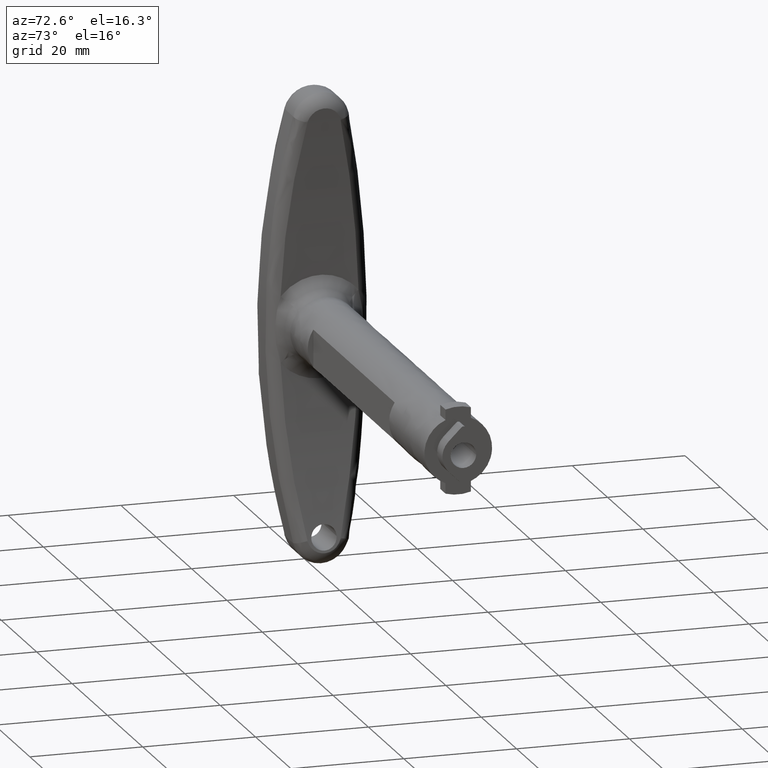
[diagram: clean part render]
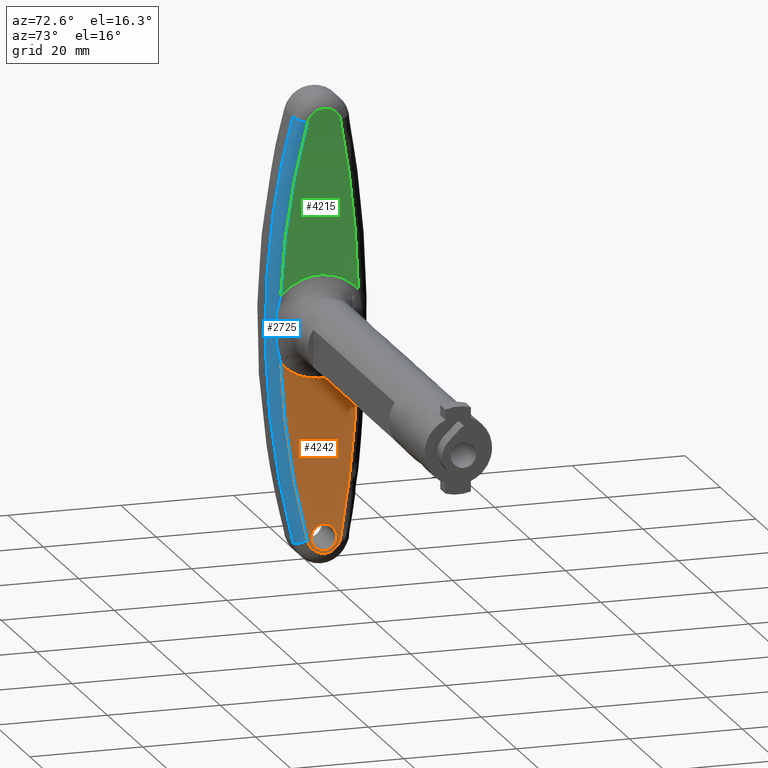
[diagram: same view with three faces highlighted in distinct colors, each labeled with its STEP entity id]
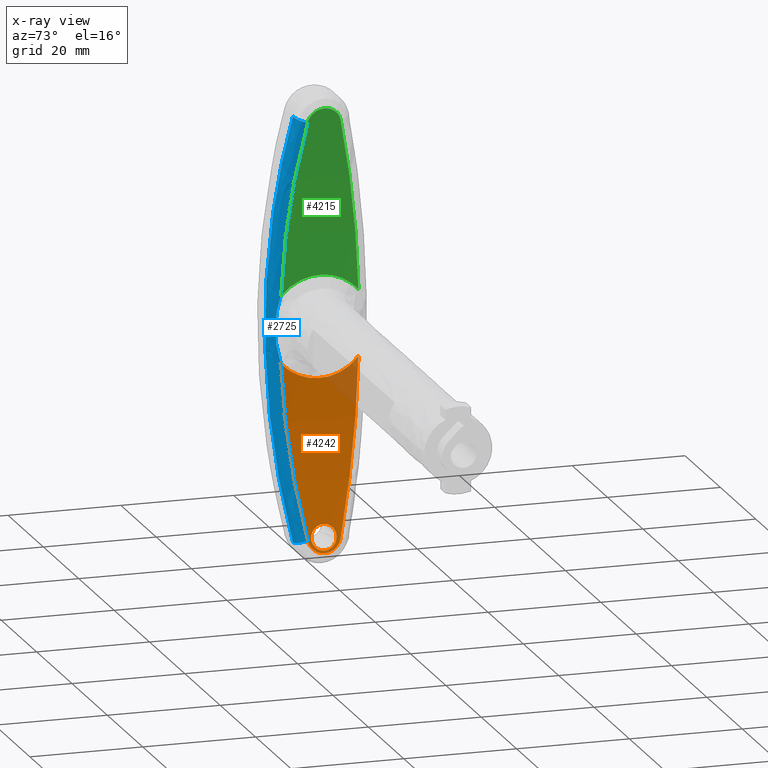
[diagram: x-ray of the same camera — body ghosted, the three highlighted faces saturated]
A machine part, auxiliary view with three faces highlighted in distinct colors.
The next image is the same camera in x-ray (body ghosted, the three faces saturated) — at least one of them is partly hidden behind the body in this view.
Their STEP definitions:

[orange] entity #4242 — the highlighted face is a freeform B-spline surface patch.
#318=CARTESIAN_POINT('',(11.084798414963300,-2.243075663508023,-36.676537470407439));
#319=VERTEX_POINT('',#318);
#325=CARTESIAN_POINT('',(11.386992760927299,0.000866583628422,-38.749999833118402));
#326=VERTEX_POINT('',#325);
#327=CARTESIAN_POINT('',(11.386992760927299,0.000866583628422,-38.749999833118402));
#328=CARTESIAN_POINT('',(11.387001273299781,-0.146720980639663,-38.750056644096652));
#329=CARTESIAN_POINT('',(11.384853712642251,-0.293363317285608,-38.735732470232158));
#330=CARTESIAN_POINT('',(11.378346874163720,-0.511881630680255,-38.692256972330718));
#331=CARTESIAN_POINT('',(11.375616815010551,-0.584515667820401,-38.674008030873907));
#332=CARTESIAN_POINT('',(11.369177115467940,-0.726051518924626,-38.630919340850447));
#333=CARTESIAN_POINT('',(11.361737330655931,-0.864695526182680,-38.581102887106439));
#334=CARTESIAN_POINT('',(11.352345051756281,-0.997660009661428,-38.518071502561561));
#335=CARTESIAN_POINT('',(11.344566124771969,-1.095230484405370,-38.465787890503982));
#336=CARTESIAN_POINT('',(11.341850487028619,-1.127394522350563,-38.447523519184323));
#337=CARTESIAN_POINT('',(11.336170851230291,-1.190991814089323,-38.409293984529292));
#338=CARTESIAN_POINT('',(11.333200619873130,-1.222480134664379,-38.389286722438179));
#339=CARTESIAN_POINT('',(11.317886825480150,-1.376412629535399,-38.286045712304173));
#340=CARTESIAN_POINT('',(11.304070327569191,-1.489636231561522,-38.192630214149467));
#341=CARTESIAN_POINT('',(11.281123947434960,-1.645051721480854,-38.036770804964512));
#342=CARTESIAN_POINT('',(11.273102148531621,-1.694436068320957,-37.982175885648012));
#343=CARTESIAN_POINT('',(11.256300901313290,-1.788226973075598,-37.867552519664997));
#344=CARTESIAN_POINT('',(11.247590756900250,-1.832211653203904,-37.807995464350618));
#345=CARTESIAN_POINT('',(11.220867728635310,-1.954176441687904,-37.624804793701429));
#346=CARTESIAN_POINT('',(11.202148770418519,-2.022935399585217,-37.495879967388923));
#347=CARTESIAN_POINT('',(11.172755053346499,-2.107176121462134,-37.292250935752953));
#348=CARTESIAN_POINT('',(11.162684231104370,-2.132171708684550,-37.222292026137197));
#349=CARTESIAN_POINT('',(11.142482760549729,-2.174779738293570,-37.081542944570067));
#350=CARTESIAN_POINT('',(11.132325885470809,-2.192507376707205,-37.010573171790298));
#351=CARTESIAN_POINT('',(11.109753542057630,-2.223978490848404,-36.852380561737078));
#352=CARTESIAN_POINT('',(11.097314334368180,-2.236130516425568,-36.764892675525559));
#353=CARTESIAN_POINT('',(11.084798414963300,-2.243075663508023,-36.676537470407439));
#354=B_SPLINE_CURVE_WITH_KNOTS('',3,(#327,#328,#329,#330,#331,#332,#333,#334,#335,#336,#337,#338,#339,#340,#341,#342,#343,#344,#345,#346,#347,#348,#349,#350,#351,#352,#353),.UNSPECIFIED.,.F.,.U.,(4,2,2,1,2,2,2,2,2,2,2,2,2,4),(0.500000000000014,0.531250000000015,0.546875000000015,0.562500000000015,0.578125000000016,0.585937500000016,0.593750000000016,0.625000000000014,0.640625000000013,0.656250000000013,0.687500000000011,0.703125000000010,0.718750000000008,0.737670210412609),.UNSPECIFIED.);
#355=EDGE_CURVE('',#326,#319,#354,.T.);
#357=CARTESIAN_POINT('',(11.053097017526740,2.249490740383622,-36.452040278163352));
#358=VERTEX_POINT('',#357);
#359=CARTESIAN_POINT('',(11.053097017526740,2.249490740383622,-36.452040278163352));
#360=CARTESIAN_POINT('',(11.055346655298640,2.249829194138224,-36.468021197279612));
#361=CARTESIAN_POINT('',(11.057599197404951,2.249998164871424,-36.484012030449527));
#362=CARTESIAN_POINT('',(11.070150898888739,2.249997698530624,-36.573056968207659));
#363=CARTESIAN_POINT('',(11.080507926292780,2.246449348237688,-36.646308730045561));
#364=CARTESIAN_POINT('',(11.101346553662671,2.232028472809970,-36.793240819240658));
#365=CARTESIAN_POINT('',(11.111724509603450,2.221204566932522,-36.866189004473497));
#366=CARTESIAN_POINT('',(11.142440548933200,2.178486459252173,-37.081461220788754));
#367=CARTESIAN_POINT('',(11.162490709794030,2.136359183248982,-37.221129058322461));
#368=CARTESIAN_POINT('',(11.191887984254359,2.052468914172007,-37.424800811737128));
#369=CARTESIAN_POINT('',(11.201622791849889,2.020827836336425,-37.492054212314898));
#370=CARTESIAN_POINT('',(11.220490406931100,1.951638449982248,-37.622062649802338));
#371=CARTESIAN_POINT('',(11.229646830422350,1.914067634419679,-37.684983468553632));
#372=CARTESIAN_POINT('',(11.256289571739361,1.792615015794090,-37.867629209103512));
#373=CARTESIAN_POINT('',(11.272958064096279,1.700079315814165,-37.981297714264912));
#374=CARTESIAN_POINT('',(11.296191819009341,1.543143344261583,-38.139118615083653));
#375=CARTESIAN_POINT('',(11.303545233933400,1.488397346627175,-38.188957053594827));
#376=CARTESIAN_POINT('',(11.317374189550289,1.374965088393050,-38.282519014096060));
#377=CARTESIAN_POINT('',(11.330362135675401,1.257343461951342,-38.370216352201460));
#378=CARTESIAN_POINT('',(11.341660606644711,1.131392888803138,-38.446256730270584));
#379=CARTESIAN_POINT('',(11.352086375939830,1.001180737495966,-38.516333947726530));
#380=CARTESIAN_POINT('',(11.356880486130560,0.933594216386047,-38.548508527308726));
#381=CARTESIAN_POINT('',(11.369625410601371,0.728472822054320,-38.633956846555932));
#382=CARTESIAN_POINT('',(11.376047283874700,0.587729150313999,-38.676891256993017));
#383=CARTESIAN_POINT('',(11.382571123933721,0.370685209900711,-38.720481412792161));
#384=CARTESIAN_POINT('',(11.384225497424390,0.297249023545490,-38.731527486115482));
#385=CARTESIAN_POINT('',(11.386441612793041,0.148692492087125,-38.746321995496061));
#386=CARTESIAN_POINT('',(11.386988508267660,0.074660544706572,-38.749971411298873));
#387=CARTESIAN_POINT('',(11.386992760927299,0.000866583628422,-38.749999833118402));
#388=B_SPLINE_CURVE_WITH_KNOTS('',3,(#359,#360,#361,#362,#363,#364,#365,#366,#367,#368,#369,#370,#371,#372,#373,#374,#375,#376,#377,#378,#379,#380,#381,#382,#383,#384,#385,#386,#387),.UNSPECIFIED.,.F.,.U.,(4,2,2,2,2,2,2,2,2,1,2,2,2,2,4),(0.246577261368025,0.250000000000000,0.265625000000001,0.281250000000001,0.312500000000004,0.328125000000005,0.343750000000006,0.375000000000009,0.390625000000010,0.406250000000010,0.421875000000011,0.437500000000012,0.468750000000013,0.484375000000013,0.500000000000014),.UNSPECIFIED.);
#389=EDGE_CURVE('',#358,#326,#388,.T.);
#460=CARTESIAN_POINT('',(10.752651893134679,-2.724058E-015,-34.250000000000000));
#461=VERTEX_POINT('',#460);
#462=CARTESIAN_POINT('',(10.752651893134679,-2.724058E-015,-34.250000000000000));
#463=CARTESIAN_POINT('',(10.752651905773520,0.149401341717648,-34.249999999601393));
#464=CARTESIAN_POINT('',(10.754597099652070,0.296267565468930,-34.264732723895563));
#465=CARTESIAN_POINT('',(10.760321625582289,0.512922960156445,-34.308006985909209));
#466=CARTESIAN_POINT('',(10.762701312426930,0.584529530226374,-34.325987473527967));
#467=CARTESIAN_POINT('',(10.768429709475820,0.726490930278788,-34.369221745927653));
#468=CARTESIAN_POINT('',(10.771791691543241,0.796968461204783,-34.394575151586707));
#469=CARTESIAN_POINT('',(10.783125580278901,1.001843445038046,-34.479925420632583));
#470=CARTESIAN_POINT('',(10.792386237662900,1.131325930795033,-34.549526454783113));
#471=CARTESIAN_POINT('',(10.806110557785299,1.284389346601527,-34.652244250556542));
#472=CARTESIAN_POINT('',(10.808963849122330,1.314558563728199,-34.673580750076340));
#473=CARTESIAN_POINT('',(10.814891841501140,1.373995978473176,-34.717864670850510));
#474=CARTESIAN_POINT('',(10.817975249569690,1.403338704578750,-34.740876940605879));
#475=CARTESIAN_POINT('',(10.827474169685610,1.489168554820130,-34.811693925176691));
#476=CARTESIAN_POINT('',(10.834149293850620,1.543614964874839,-34.861361007568760));
#477=CARTESIAN_POINT('',(10.855183861617631,1.698892711160581,-35.017498371991742));
#478=CARTESIAN_POINT('',(10.870542856230321,1.791738758447448,-35.131037336917970));
#479=CARTESIAN_POINT('',(10.891497047089549,1.894136304482271,-35.285046909592083));
#480=CARTESIAN_POINT('',(10.895781609949230,1.913942855197389,-35.316496239564607));
#481=CARTESIAN_POINT('',(10.904436273342730,1.951745584862965,-35.379934240699072));
#482=CARTESIAN_POINT('',(10.908817277965630,1.969798112685107,-35.412003171537471));
#483=CARTESIAN_POINT('',(10.922119907816910,2.021454611343463,-35.509240825884682));
#484=CARTESIAN_POINT('',(10.940281726151859,2.083672092396466,-35.641635159076102));
#485=CARTESIAN_POINT('',(10.959295362467699,2.132761729995594,-35.779438413256280));
#486=CARTESIAN_POINT('',(10.978746846263810,2.175192637572443,-35.919984394658712));
#487=CARTESIAN_POINT('',(10.988747541020979,2.193143112793488,-35.992030262506923));
#488=CARTESIAN_POINT('',(11.016709315578460,2.232785008539020,-36.192842141000312));
#489=CARTESIAN_POINT('',(11.034807180032789,2.246739185341546,-36.322113556144210));
#490=CARTESIAN_POINT('',(11.053097017526740,2.249490740383622,-36.452040278163352));
#491=B_SPLINE_CURVE_WITH_KNOTS('',3,(#462,#463,#464,#465,#466,#467,#468,#469,#470,#471,#472,#473,#474,#475,#476,#477,#478,#479,#480,#481,#482,#483,#484,#485,#486,#487,#488,#489,#490),.UNSPECIFIED.,.F.,.U.,(4,2,2,2,2,2,2,2,2,2,2,1,2,2,4),(0.0,0.031249999999999,0.046874999999999,0.062499999999999,0.093749999999998,0.101562499999999,0.109374999999999,0.125000000000000,0.156250000000000,0.164062500000000,0.171875000000001,0.187500000000001,0.203125000000001,0.218750000000001,0.246577261368026),.UNSPECIFIED.);
#492=EDGE_CURVE('',#461,#358,#491,.T.);
#494=CARTESIAN_POINT('',(11.084798414963300,-2.243075663508023,-36.676537470407439));
#495=CARTESIAN_POINT('',(11.076642132299179,-2.247601938611361,-36.618958795954022));
#496=CARTESIAN_POINT('',(11.068453271896111,-2.249916969828885,-36.561011790624804));
#497=CARTESIAN_POINT('',(11.039394260288310,-2.250164119100353,-36.354875379754510));
#498=CARTESIAN_POINT('',(11.018984320854910,-2.235881524195792,-36.209175917444753));
#499=CARTESIAN_POINT('',(10.989077959417790,-2.193663119065670,-35.994409197559129));
#500=CARTESIAN_POINT('',(10.979222000896980,-2.176099118752577,-35.923413253639133));
#501=CARTESIAN_POINT('',(10.959736429484090,-2.133834312005413,-35.782634116731437));
#502=CARTESIAN_POINT('',(10.950065349745810,-2.108979858893445,-35.712547960775503));
#503=CARTESIAN_POINT('',(10.921975008359929,-2.025051814984489,-35.508391216697007));
#504=CARTESIAN_POINT('',(10.904314822395810,-1.956500531997278,-35.379247436642281));
#505=CARTESIAN_POINT('',(10.879363304318970,-1.834967283865434,-35.195872608648941));
#506=CARTESIAN_POINT('',(10.871304299601460,-1.791316822500069,-35.136483122295857));
#507=CARTESIAN_POINT('',(10.855713749769439,-1.697491894834155,-35.021311871827102));
#508=CARTESIAN_POINT('',(10.848311529062929,-1.648094130189750,-34.966485861003200));
#509=CARTESIAN_POINT('',(10.827243991398911,-1.492763454215273,-34.810107908758923));
#510=CARTESIAN_POINT('',(10.814701636179439,-1.379727063438383,-34.716538861662137));
#511=CARTESIAN_POINT('',(10.798133915367499,-1.195654997893983,-34.592547754516197));
#512=CARTESIAN_POINT('',(10.792975171548489,-1.131601338377589,-34.553864241041524));
#513=CARTESIAN_POINT('',(10.783636050469950,-1.001318864366369,-34.483734061981018));
#514=CARTESIAN_POINT('',(10.775215523248731,-0.868293553607062,-34.420394323654840));
#515=CARTESIAN_POINT('',(10.768585123683479,-0.729880657919998,-34.370394516714541));
#516=CARTESIAN_POINT('',(10.762853688596580,-0.588744399291371,-34.327138680571053));
#517=CARTESIAN_POINT('',(10.760432703443101,-0.516634749977485,-34.308846809734057));
#518=CARTESIAN_POINT('',(10.754597278907131,-0.297234206352150,-34.264734771767174));
#519=CARTESIAN_POINT('',(10.752651888899390,-0.149401043995591,-34.249999972072423));
#520=CARTESIAN_POINT('',(10.752651893134679,-2.724058E-015,-34.250000000000000));
#521=B_SPLINE_CURVE_WITH_KNOTS('',3,(#494,#495,#496,#497,#498,#499,#500,#501,#502,#503,#504,#505,#506,#507,#508,#509,#510,#511,#512,#513,#514,#515,#516,#517,#518,#519,#520),.UNSPECIFIED.,.F.,.U.,(4,2,2,2,2,2,2,2,2,2,1,2,2,4),(0.737670210412608,0.750000000000007,0.781250000000005,0.796875000000005,0.812500000000005,0.843750000000005,0.859375000000005,0.875000000000005,0.906250000000004,0.921875000000003,0.937500000000003,0.953125000000002,0.968750000000001,1.0),.UNSPECIFIED.);
#522=EDGE_CURVE('',#319,#461,#521,.T.);
#1266=CARTESIAN_POINT('',(8.565374537977030,6.898788747707260,-5.846931745379780));
#1267=VERTEX_POINT('',#1266);
#1285=CARTESIAN_POINT('',(8.565374537977080,-6.898788747707240,-5.846931745379830));
#1286=VERTEX_POINT('',#1285);
#1302=CARTESIAN_POINT('',(8.565374537977030,6.898788747707260,-5.846931745379780));
#1303=CARTESIAN_POINT('',(8.571007827662710,6.690181183218795,-6.098813764775187));
#1304=CARTESIAN_POINT('',(8.576738374677243,6.468556264590209,-6.338793730667345));
#1305=CARTESIAN_POINT('',(8.588193831265979,5.999128236295182,-6.794823056447641));
#1306=CARTESIAN_POINT('',(8.593919157418410,5.751328816012403,-7.010875779267711));
#1307=CARTESIAN_POINT('',(8.605156886804085,5.228452547209046,-7.418050585300719));
#1308=CARTESIAN_POINT('',(8.610563129112331,4.958243927776730,-7.605376836105400));
#1309=CARTESIAN_POINT('',(8.620772709620887,4.400987663726124,-7.948522225731934));
#1310=CARTESIAN_POINT('',(8.625576801248210,4.113919457796063,-8.104352952527249));
#1311=CARTESIAN_POINT('',(8.634413036138490,3.522875810571714,-8.384485093734295));
#1312=CARTESIAN_POINT('',(8.638445530367283,3.218902356103289,-8.508790205364115));
#1313=CARTESIAN_POINT('',(8.642894000116627,2.827966439520507,-8.643718737026964));
#1314=CARTESIAN_POINT('',(8.643754224569644,2.749202618166159,-8.669683453025606));
#1315=CARTESIAN_POINT('',(8.645404348245846,2.591380812791141,-8.719286020622324));
#1316=CARTESIAN_POINT('',(8.647777554613059,2.353908882847209,-8.790305089099462));
#1317=CARTESIAN_POINT('',(8.649838513902610,2.114233961903788,-8.851237283966098));
#1318=CARTESIAN_POINT('',(8.653527464310747,1.631960768569859,-8.959717103518520));
#1319=CARTESIAN_POINT('',(8.655409571559527,1.306556503034887,-9.014232131647050));
#1320=CARTESIAN_POINT('',(8.657930126660700,0.647830621863339,-9.087014991126825));
#1321=CARTESIAN_POINT('',(8.658549622717112,0.319213596773701,-9.104741401678048));
#1322=CARTESIAN_POINT('',(8.658528977737550,-0.335323618655305,-9.104148791249934));
#1323=CARTESIAN_POINT('',(8.657889608712136,-0.661457009501579,-9.085849072519212));
#1324=CARTESIAN_POINT('',(8.655378852038789,-1.311459591571149,-9.013340899549796));
#1325=CARTESIAN_POINT('',(8.653507411402172,-1.635328991292946,-8.959135757666852));
#1326=CARTESIAN_POINT('',(8.650414777818282,-2.038703087477010,-8.868181138109121));
#1327=CARTESIAN_POINT('',(8.649757991159389,-2.119359509814551,-8.848808982481957));
#1328=CARTESIAN_POINT('',(8.648378715252534,-2.279514822900066,-8.807977652286292));
#1329=CARTESIAN_POINT('',(8.646208626196806,-2.518376612883251,-8.743522329365607));
#1330=CARTESIAN_POINT('',(8.643746088784909,-2.753178641821811,-8.669567629784590));
#1331=CARTESIAN_POINT('',(8.638459722911058,-3.217464260853952,-8.509213001265184));
#1332=CARTESIAN_POINT('',(8.634453790832206,-3.519912183621245,-8.385752411570607));
#1333=CARTESIAN_POINT('',(8.625627380941154,-4.110771407705300,-8.105980923156915));
#1334=CARTESIAN_POINT('',(8.620806605356881,-4.399183534935170,-7.949671968283068));
#1335=CARTESIAN_POINT('',(8.614365701284289,-4.750681505023450,-7.733179160571421));
#1336=CARTESIAN_POINT('',(8.613054880178796,-4.820628059005483,-7.688756634017009));
#1337=CARTESIAN_POINT('',(8.610403936646849,-4.959101797369302,-7.598100255285242));
#1338=CARTESIAN_POINT('',(8.606388068342085,-5.164462728654985,-7.459555460701831));
#1339=CARTESIAN_POINT('',(8.602268995553928,-5.362874212797089,-7.313438148728712));
#1340=CARTESIAN_POINT('',(8.593932294792989,-5.750612169742503,-7.011303048949328));
#1341=CARTESIAN_POINT('',(8.588243176667822,-5.997017009039348,-6.796707589237014));
#1342=CARTESIAN_POINT('',(8.576804145211648,-6.465949315181911,-6.341491038958915));
#1343=CARTESIAN_POINT('',(8.571053832857118,-6.688477554950926,-6.100870801055081));
#1344=CARTESIAN_POINT('',(8.565374537977080,-6.898788747707240,-5.846931745379830));
#1345=B_SPLINE_CURVE_WITH_KNOTS('',3,(#1302,#1303,#1304,#1305,#1306,#1307,#1308,#1309,#1310,#1311,#1312,#1313,#1314,#1315,#1316,#1317,#1318,#1319,#1320,#1321,#1322,#1323,#1324,#1325,#1326,#1327,#1328,#1329,#1330,#1331,#1332,#1333,#1334,#1335,#1336,#1337,#1338,#1339,#1340,#1341,#1342,#1343,#1344),.UNSPECIFIED.,.F.,.U.,(4,2,2,2,2,2,2,1,2,2,2,2,2,2,1,2,2,2,2,1,2,2,4),(0.0,0.062500000000000,0.125000000000000,0.187500000000000,0.250000000000000,0.312500000000000,0.328125000000000,0.343750000000000,0.375000000000000,0.437500000000000,0.500000000000000,0.562500000000000,0.625000000000000,0.640625000000000,0.656250000000000,0.687500000000000,0.750000000000000,0.812500000000000,0.828125000000000,0.843750000000000,0.875000000000000,0.937500000000000,1.0),.UNSPECIFIED.);
#1346=EDGE_CURVE('',#1267,#1286,#1345,.T.);
#2025=CARTESIAN_POINT('',(11.111957996925319,2.928796588169795,-36.867759739038398));
#2026=VERTEX_POINT('',#2025);
#2027=CARTESIAN_POINT('',(11.111957996925319,2.928796588169795,-36.867759739038398));
#2028=CARTESIAN_POINT('',(10.681201415964990,3.604957682875886,-33.842954023121237));
#2029=CARTESIAN_POINT('',(10.303226574487979,4.195902998023411,-30.809090071472411));
#2030=CARTESIAN_POINT('',(9.653370695271693,5.209712181734115,-24.723398632537311));
#2031=CARTESIAN_POINT('',(9.381488793201838,5.632573423033206,-21.671570987521381));
#2032=CARTESIAN_POINT('',(8.944711811712585,6.311016970514936,-15.549969658193611));
#2033=CARTESIAN_POINT('',(8.779815666684824,6.566598945071740,-12.480196000631111));
#2034=CARTESIAN_POINT('',(8.626480117792831,6.804157207259089,-8.217908431075149));
#2035=CARTESIAN_POINT('',(8.591903421899414,6.857709113177255,-7.033090843459000));
#2036=CARTESIAN_POINT('',(8.565374537977030,6.898788747707260,-5.846931745379780));
#2037=B_SPLINE_CURVE_WITH_KNOTS('',3,(#2027,#2028,#2029,#2030,#2031,#2032,#2033,#2034,#2035,#2036),.UNSPECIFIED.,.F.,.U.,(4,2,2,2,4),(0.0,0.125000000000000,0.250000000000000,0.375000000000000,0.423049628545100),.UNSPECIFIED.);
#2038=EDGE_CURVE('',#2026,#1267,#2037,.T.);
#2220=CARTESIAN_POINT('',(11.111957996925240,-2.928796588169855,-36.867759739038213));
#2221=VERTEX_POINT('',#2220);
#2290=CARTESIAN_POINT('',(11.111957996925240,-2.928796588169855,-36.867759739038213));
#2291=CARTESIAN_POINT('',(11.135483239908680,-2.891868846118078,-37.032955675384827));
#2292=CARTESIAN_POINT('',(11.181291552815219,-2.790908753331285,-37.352365699065359));
#2293=CARTESIAN_POINT('',(11.224630187723180,-2.638025570879579,-37.650751281139947));
#2294=CARTESIAN_POINT('',(11.266611641000230,-2.458037049105296,-37.938171302489813));
#2295=CARTESIAN_POINT('',(11.286336316445359,-2.356988903946407,-38.072380585438417));
#2296=CARTESIAN_POINT('',(11.323219687290180,-2.133985697956605,-38.322177222233421));
#2297=CARTESIAN_POINT('',(11.340389543983790,-2.011984528308906,-38.437838248995313));
#2298=CARTESIAN_POINT('',(11.371988833617150,-1.746054661689228,-38.649881379233321));
#2299=CARTESIAN_POINT('',(11.385995595612640,-1.605617394828221,-38.743431308175872));
#2300=CARTESIAN_POINT('',(11.410379428702280,-1.311460077942664,-38.905846300923869));
#2301=CARTESIAN_POINT('',(11.420777490548829,-1.157566401346231,-38.974849910728487));
#2302=CARTESIAN_POINT('',(11.433519170192790,-0.916058565897072,-39.059260122251189));
#2303=CARTESIAN_POINT('',(11.437238095987230,-0.834678808676174,-39.083866369751362));
#2304=CARTESIAN_POINT('',(11.443607528689281,-0.670982469706346,-39.125980704130917));
#2305=CARTESIAN_POINT('',(11.446264641621770,-0.588540230673975,-39.143532486066540));
#2306=CARTESIAN_POINT('',(11.452664617596140,-0.339451284657722,-39.185790521768638));
#2307=CARTESIAN_POINT('',(11.454847050999330,-0.171055491544226,-39.200177128012250));
#2308=CARTESIAN_POINT('',(11.454850876921780,0.170608967591891,-39.200202361912943));
#2309=CARTESIAN_POINT('',(11.452668153655321,0.339261862614192,-39.185813850650803));
#2310=CARTESIAN_POINT('',(11.444135663577169,0.671452431675042,-39.129475197717397));
#2311=CARTESIAN_POINT('',(11.437780306684440,0.835253755042503,-39.087488898811372));
#2312=CARTESIAN_POINT('',(11.420786132707081,1.157441093119071,-38.974907272825341));
#2313=CARTESIAN_POINT('',(11.410383328326370,1.311417528073808,-38.905872316253948));
#2314=CARTESIAN_POINT('',(11.392085304875920,1.532151203633193,-38.783993412747058));
#2315=CARTESIAN_POINT('',(11.385534535650510,1.604014315985207,-38.740295463001750));
#2316=CARTESIAN_POINT('',(11.371529375912500,1.744273130727936,-38.646687084668457));
#2317=CARTESIAN_POINT('',(11.364058034441250,1.812811045134530,-38.596662991901447));
#2318=CARTESIAN_POINT('',(11.340368320120559,2.012136620250389,-38.437695305505933));
#2319=CARTESIAN_POINT('',(11.323197818502249,2.134140158379964,-38.322029873126887));
#2320=CARTESIAN_POINT('',(11.295517724252150,2.301465383302960,-38.134562286606112));
#2321=CARTESIAN_POINT('',(11.285968427047340,2.354612473743674,-38.069731822529150));
#2322=CARTESIAN_POINT('',(11.266226773311431,2.455586014966792,-37.935329254596631));
#2323=CARTESIAN_POINT('',(11.256002197883360,2.503549109645788,-37.865536570107693));
#2324=CARTESIAN_POINT('',(11.224562263926339,2.638264752488159,-37.650283624085183));
#2325=CARTESIAN_POINT('',(11.202917552743330,2.714602191943117,-37.501259064665987));
#2326=CARTESIAN_POINT('',(11.158378178430951,2.841403769132606,-37.192595061875778));
#2327=CARTESIAN_POINT('',(11.135483287822000,2.891868770908218,-37.032956011835360));
#2328=CARTESIAN_POINT('',(11.111957996925300,2.928796588169795,-36.867759739038398));
#2329=B_SPLINE_CURVE_WITH_KNOTS('',3,(#2290,#2291,#2292,#2293,#2294,#2295,#2296,#2297,#2298,#2299,#2300,#2301,#2302,#2303,#2304,#2305,#2306,#2307,#2308,#2309,#2310,#2311,#2312,#2313,#2314,#2315,#2316,#2317,#2318,#2319,#2320,#2321,#2322,#2323,#2324,#2325,#2326,#2327,#2328),.UNSPECIFIED.,.F.,.U.,(4,1,2,2,2,2,2,2,2,2,2,2,2,2,2,2,2,2,2,4),(0.0,0.062500000000000,0.125000000000000,0.187499999999999,0.249999999999999,0.312499999999999,0.374999999999999,0.406249999999999,0.437499999999999,0.499999999999998,0.562499999999998,0.624999999999997,0.687499999999997,0.718749999999998,0.749999999999998,0.812499999999998,0.843749999999997,0.874999999999997,0.937499999999999,1.0),.UNSPECIFIED.);
#2330=EDGE_CURVE('',#2221,#2026,#2329,.T.);
#2666=CARTESIAN_POINT('',(8.565374537977080,-6.898788747707240,-5.846931745379830));
#2667=CARTESIAN_POINT('',(8.590203199916061,-6.860341527500109,-6.957060650940844));
#2668=CARTESIAN_POINT('',(8.622133784640649,-6.810888117652031,-8.068373381505650));
#2669=CARTESIAN_POINT('',(8.688578156415366,-6.707952024449184,-9.959754648278775));
#2670=CARTESIAN_POINT('',(8.719448335811997,-6.660118782071163,-10.739249220171461));
#2671=CARTESIAN_POINT('',(8.788235424380225,-6.553501685649818,-12.299279817420850));
#2672=CARTESIAN_POINT('',(8.901771475015302,-6.377481971015770,-14.636028785785390));
#2673=CARTESIAN_POINT('',(9.046148835986957,-6.153448664861821,-16.962946843959362));
#2674=CARTESIAN_POINT('',(9.375471146012403,-5.641933308143686,-21.603809181470680));
#2675=CARTESIAN_POINT('',(9.649095659965045,-5.216373765359887,-24.680427428105101));
#2676=CARTESIAN_POINT('',(10.301901217187520,-4.197978252067952,-30.799589617730820));
#2677=CARTESIAN_POINT('',(10.681084534743681,-3.605141151761131,-33.842133185404172));
#2678=CARTESIAN_POINT('',(11.111957996925240,-2.928796588169855,-36.867759739038213));
#2679=B_SPLINE_CURVE_WITH_KNOTS('',3,(#2666,#2667,#2668,#2669,#2670,#2671,#2672,#2673,#2674,#2675,#2676,#2677,#2678),.UNSPECIFIED.,.F.,.U.,(4,2,2,1,2,2,4),(0.580364119048703,0.624999999999999,0.656249999999999,0.687499999999999,0.750000000000000,0.875000000000000,1.0),.UNSPECIFIED.);
#2680=EDGE_CURVE('',#1286,#2221,#2679,.T.);
#4216=CARTESIAN_POINT('',(11.710729733832638,7.243728185092622,-40.852207597746066));
#4217=CARTESIAN_POINT('',(11.710729733832638,-7.252351259792631,-40.852207597746066));
#4218=CARTESIAN_POINT('',(8.827931863498757,7.243728185092623,-22.625634255506768));
#4219=CARTESIAN_POINT('',(8.827931863498757,-7.252351259792633,-22.625634255506768));
#4220=CARTESIAN_POINT('',(8.533327765270411,7.243728185092623,-4.174842733554726));
#4221=CARTESIAN_POINT('',(8.533327765270411,-7.252351259792632,-4.174842733554726));
#4229=(BOUNDED_SURFACE()B_SPLINE_SURFACE(1,2,((#4216,#4218,#4220),(#4217,#4219,#4221)),.UNSPECIFIED.,.F.,.F.,.U.)B_SPLINE_SURFACE_WITH_KNOTS((2,2),(3,3),(0.0,14.496079444885250),(7.396155442190170,44.256948386240012),.UNSPECIFIED.)GEOMETRIC_REPRESENTATION_ITEM()RATIONAL_B_SPLINE_SURFACE(((0.998721222970374,0.996031641162841,0.998295817299164),(0.998721222970374,0.996031641162841,0.998295817299164)))REPRESENTATION_ITEM('')SURFACE());
#4230=ORIENTED_EDGE('',*,*,#2038,.T.);
#4231=ORIENTED_EDGE('',*,*,#1346,.T.);
#4232=ORIENTED_EDGE('',*,*,#2680,.T.);
#4233=ORIENTED_EDGE('',*,*,#2330,.T.);
#4234=EDGE_LOOP('',(#4230,#4231,#4232,#4233));
#4235=FACE_OUTER_BOUND('',#4234,.T.);
#4236=ORIENTED_EDGE('',*,*,#355,.T.);
#4237=ORIENTED_EDGE('',*,*,#522,.T.);
#4238=ORIENTED_EDGE('',*,*,#492,.T.);
#4239=ORIENTED_EDGE('',*,*,#389,.T.);
#4240=EDGE_LOOP('',(#4236,#4237,#4238,#4239));
#4241=FACE_BOUND('',#4240,.T.);
#4242=ADVANCED_FACE('',(#4235,#4241),#4229,.F.);

[blue] entity #2725 — the highlighted face is a freeform B-spline surface patch.
#1285=CARTESIAN_POINT('',(8.565374537977080,-6.898788747707240,-5.846931745379830));
#1286=VERTEX_POINT('',#1285);
#1479=CARTESIAN_POINT('',(8.565374537299888,-6.898788747727990,5.846931745007661));
#1480=VERTEX_POINT('',#1479);
#1496=CARTESIAN_POINT('',(8.565374537977080,-6.898788747707240,-5.846931745379830));
#1497=CARTESIAN_POINT('',(8.560125675101748,-6.980192760954293,-5.612238652295429));
#1498=CARTESIAN_POINT('',(8.551203757348130,-7.054447444089572,-5.375856380756083));
#1499=CARTESIAN_POINT('',(8.529571676536429,-7.190755095126008,-4.900089151844925));
#1500=CARTESIAN_POINT('',(8.516835798318978,-7.252794375091324,-4.660701862537815));
#1501=CARTESIAN_POINT('',(8.489917906274672,-7.365971883608280,-4.179151081590431));
#1502=CARTESIAN_POINT('',(8.475724492761978,-7.417103273991175,-3.936986355100168));
#1503=CARTESIAN_POINT('',(8.447630076802284,-7.509307507746551,-3.450016711540851));
#1504=CARTESIAN_POINT('',(8.433761234528669,-7.550259541379281,-3.205824056713737));
#1505=CARTESIAN_POINT('',(8.394724027618455,-7.658645913761071,-2.471682375582110));
#1506=CARTESIAN_POINT('',(8.372238775193880,-7.711743729210101,-1.979946649822922));
#1507=CARTESIAN_POINT('',(8.349089730859069,-7.764789283284299,-1.238897209731619));
#1508=CARTESIAN_POINT('',(8.343099893686640,-7.778018577084341,-0.991101004684081));
#1509=CARTESIAN_POINT('',(8.335069859182013,-7.795624009308050,-0.495335962760024));
#1510=CARTESIAN_POINT('',(8.333030426899621,-7.799999672106714,-0.247605964998789));
#1511=CARTESIAN_POINT('',(8.333029971692190,-7.800000655731392,0.495128555599848));
#1512=CARTESIAN_POINT('',(8.341326096628388,-7.782572959333757,0.989677975520943));
#1513=CARTESIAN_POINT('',(8.364438779771927,-7.729620498609022,1.730594573466577));
#1514=CARTESIAN_POINT('',(8.373895027392424,-7.707461989184722,1.977606683830890));
#1515=CARTESIAN_POINT('',(8.395539783644599,-7.653921097808349,2.470415337521060));
#1516=CARTESIAN_POINT('',(8.407714005391341,-7.622576023248036,2.715952544968834));
#1517=CARTESIAN_POINT('',(8.446739727055665,-7.514231610077445,3.449944196004744));
#1518=CARTESIAN_POINT('',(8.476307464227739,-7.423102612269783,3.935798451609434));
#1519=CARTESIAN_POINT('',(8.516745655940813,-7.253220586628534,4.659023188480507));
#1520=CARTESIAN_POINT('',(8.529530953726635,-7.190988213127429,4.899246307988572));
#1521=CARTESIAN_POINT('',(8.551203318586106,-7.054473640575007,5.375794059250239));
#1522=CARTESIAN_POINT('',(8.560127928477099,-6.980157803553747,5.612339436451989));
#1523=CARTESIAN_POINT('',(8.565374537299888,-6.898788747727980,5.846931745007651));
#1524=B_SPLINE_CURVE_WITH_KNOTS('',3,(#1496,#1497,#1498,#1499,#1500,#1501,#1502,#1503,#1504,#1505,#1506,#1507,#1508,#1509,#1510,#1511,#1512,#1513,#1514,#1515,#1516,#1517,#1518,#1519,#1520,#1521,#1522,#1523),.UNSPECIFIED.,.F.,.U.,(4,2,2,2,2,2,2,2,2,2,2,2,2,4),(0.0,0.062500000000000,0.125000000000000,0.187500000000000,0.250000000000000,0.375000000000000,0.437500000000000,0.500000000000000,0.625000000000000,0.687500000000000,0.750000000000000,0.875000000000000,0.937500000000000,1.0),.UNSPECIFIED.);
#1525=EDGE_CURVE('',#1286,#1480,#1524,.T.);
#2220=CARTESIAN_POINT('',(11.111957996925240,-2.928796588169855,-36.867759739038213));
#2221=VERTEX_POINT('',#2220);
#2222=CARTESIAN_POINT('',(9.131934731147599,-4.881327646949790,-37.582885221583453));
#2223=VERTEX_POINT('',#2222);
#2224=CARTESIAN_POINT('',(11.111957996925250,-2.928796588169862,-36.867759739038171));
#2225=CARTESIAN_POINT('',(11.137555194284603,-3.755467385980590,-37.047505086986483));
#2226=CARTESIAN_POINT('',(10.553900244636690,-4.331018409291718,-37.258303886536552));
#2227=CARTESIAN_POINT('',(9.970245294988766,-4.906569432602847,-37.469102686086600));
#2228=CARTESIAN_POINT('',(9.131934731147599,-4.881327646949790,-37.582885221583453));
#2236=(BOUNDED_CURVE()B_SPLINE_CURVE(2,(#2224,#2225,#2226,#2227,#2228),.UNSPECIFIED.,.F.,.U.)B_SPLINE_CURVE_WITH_KNOTS((3,2,3),(0.0,0.500000000000000,1.0),.UNSPECIFIED.)CURVE()GEOMETRIC_REPRESENTATION_ITEM()RATIONAL_B_SPLINE_CURVE((1.0,0.920930941301216,1.0,0.920930941301216,1.0))REPRESENTATION_ITEM(''));
#2237=EDGE_CURVE('',#2221,#2223,#2236,.T.);
#2453=CARTESIAN_POINT('',(9.131934726891441,-4.881327646949760,37.582885221583453));
#2454=VERTEX_POINT('',#2453);
#2455=CARTESIAN_POINT('',(11.111957992698720,-2.928796588169825,36.867759739265253));
#2456=VERTEX_POINT('',#2455);
#2457=CARTESIAN_POINT('',(9.131934726891441,-4.881327646949760,37.582885221583453));
#2458=CARTESIAN_POINT('',(9.970245290729494,-4.906569432581511,37.469102686180051));
#2459=CARTESIAN_POINT('',(10.553900240383420,-4.331018409273447,37.258303886698101));
#2460=CARTESIAN_POINT('',(11.137555190037361,-3.755467385965383,37.047505087216145));
#2461=CARTESIAN_POINT('',(11.111957992698670,-2.928796588169824,36.867759739265260));
#2469=(BOUNDED_CURVE()B_SPLINE_CURVE(2,(#2457,#2458,#2459,#2460,#2461),.UNSPECIFIED.,.F.,.U.)B_SPLINE_CURVE_WITH_KNOTS((3,2,3),(0.0,0.500000000000000,1.0),.UNSPECIFIED.)CURVE()GEOMETRIC_REPRESENTATION_ITEM()RATIONAL_B_SPLINE_CURVE((1.0,0.920930941303678,1.0,0.920930941303678,1.0))REPRESENTATION_ITEM(''));
#2470=EDGE_CURVE('',#2454,#2456,#2469,.T.);
#2568=CARTESIAN_POINT('',(9.169847947184723,-4.798797181884902,37.954888267644655));
#2569=CARTESIAN_POINT('',(9.152484391183592,-4.826165001131284,37.831528860035348));
#2570=CARTESIAN_POINT('',(9.135120810265578,-4.853532859650765,37.708169275404032));
#2571=CARTESIAN_POINT('',(8.249545122999004,-6.249345752845790,31.416595581209332));
#2572=CARTESIAN_POINT('',(7.593992322276718,-7.273530125761140,25.211754357997073));
#2573=CARTESIAN_POINT('',(6.713834180470174,-8.646302333349563,12.729902589982004));
#2574=CARTESIAN_POINT('',(6.489185536490991,-8.994890603334669,6.452832896290614));
#2575=CARTESIAN_POINT('',(6.484308231211626,-9.002471315617747,-3.018069344926326));
#2576=CARTESIAN_POINT('',(6.538084306479448,-8.918926121890872,-6.184269547613545));
#2577=CARTESIAN_POINT('',(6.703490913812334,-8.661621539611414,-10.947716176082645));
#2578=CARTESIAN_POINT('',(6.772872200239403,-8.553658314311099,-12.539554847416099));
#2579=CARTESIAN_POINT('',(6.939193691361235,-8.294651573800993,-15.710941000959476));
#2580=CARTESIAN_POINT('',(7.036164787484603,-8.143560087314306,-17.292227575179531));
#2581=CARTESIAN_POINT('',(7.589154270592768,-7.281101604700613,-25.176848163291510));
#2582=CARTESIAN_POINT('',(8.249313221022424,-6.249711275414476,-31.414948002587614));
#2583=CARTESIAN_POINT('',(9.135125452318434,-4.853525549720474,-37.708202224627740));
#2584=CARTESIAN_POINT('',(9.152493671017414,-4.826150381291431,-37.831594758389357));
#2585=CARTESIAN_POINT('',(9.169861864786531,-4.798775252155924,-37.954987115036793));
#2586=CARTESIAN_POINT('',(9.176927720655938,-4.799012925597070,37.953925735133012));
#2587=CARTESIAN_POINT('',(9.159563564392064,-4.826379890223577,37.830566854371575));
#2588=CARTESIAN_POINT('',(9.142199395650426,-4.853746874515813,37.707207884965264));
#2589=CARTESIAN_POINT('',(8.256610224579706,-6.249489181254723,31.415782761993558));
#2590=CARTESIAN_POINT('',(7.601048351378162,-7.273620564909126,25.211097031987439));
#2591=CARTESIAN_POINT('',(6.720877835333500,-8.646321011286190,12.729566860014264));
#2592=CARTESIAN_POINT('',(6.496226151923732,-8.994890873194116,6.452662479850024));
#2593=CARTESIAN_POINT('',(6.491348778891124,-9.002471185088247,-3.017989636771667));
#2594=CARTESIAN_POINT('',(6.545125596096209,-8.918930404072860,-6.184106265936247));
#2595=CARTESIAN_POINT('',(6.710534510903676,-8.661639382486031,-10.947427795785662));
#2596=CARTESIAN_POINT('',(6.779916763778962,-8.553681838019495,-12.539224809509012));
#2597=CARTESIAN_POINT('',(6.946240580783572,-8.294688699799188,-15.710528338046409));
#2598=CARTESIAN_POINT('',(7.043213033745712,-8.143605132845766,-17.291773912173202));
#2599=CARTESIAN_POINT('',(7.596210230223973,-7.281191651054910,-25.176191700107225));
#2600=CARTESIAN_POINT('',(8.256378318016044,-6.249854685958153,-31.414135219237462));
#2601=CARTESIAN_POINT('',(9.142204037960097,-4.853739564682780,-37.707240834643841));
#2602=CARTESIAN_POINT('',(9.159572844745995,-4.826365270567855,-37.830632753682011));
#2603=CARTESIAN_POINT('',(9.176941639047637,-4.798990996128893,-37.954024584029163));
#2604=CARTESIAN_POINT('',(11.227564170001132,-4.861502484293298,37.675130903617543));
#2605=CARTESIAN_POINT('',(11.209812693595921,-4.888615431208321,37.551953629870347));
#2606=CARTESIAN_POINT('',(11.192064887242381,-4.915722772622488,37.428801822566001));
#2607=CARTESIAN_POINT('',(10.291766709528023,-6.290804830185533,31.181643977268951));
#2608=CARTESIAN_POINT('',(9.625700388960754,-7.299571110551279,25.022484368177413));
#2609=CARTESIAN_POINT('',(8.731507448593876,-8.651652676909446,12.633731866918888));
#2610=CARTESIAN_POINT('',(8.503339099380090,-8.994967803742194,6.404080783033081));
#2611=CARTESIAN_POINT('',(8.498384938494505,-9.002433975278239,-2.995267377665972));
#2612=CARTESIAN_POINT('',(8.553007076680855,-8.920151503385043,-6.137545156564095));
#2613=CARTESIAN_POINT('',(8.721027641718997,-8.666732373522995,-10.865113802149860));
#2614=CARTESIAN_POINT('',(8.791506571457186,-8.560399082002061,-12.444981796962052));
#2615=CARTESIAN_POINT('',(8.960466173938160,-8.305300493351993,-15.592576125230197));
#2616=CARTESIAN_POINT('',(9.058978217862249,-8.156487942364642,-17.162028432292047));
#2617=CARTESIAN_POINT('',(9.620784298411847,-7.307028748114610,-24.987832014238261));
#2618=CARTESIAN_POINT('',(10.291530813048784,-6.291165134497370,-31.180007072878084));
#2619=CARTESIAN_POINT('',(11.192069657984927,-4.915715492587731,-37.428834896612479));
#2620=CARTESIAN_POINT('',(11.209822232718878,-4.888600868162486,-37.552019791483190));
#2621=CARTESIAN_POINT('',(11.227578479420576,-4.861480635309852,-37.675230166092312));
#2622=CARTESIAN_POINT('',(11.163431865259602,-2.840554158114821,37.229228523560174));
#2623=CARTESIAN_POINT('',(11.146200709146962,-2.867603901456375,37.108224923055516));
#2624=CARTESIAN_POINT('',(11.128969540489035,-2.894653664491700,36.987221234453230));
#2625=CARTESIAN_POINT('',(10.250163284321802,-4.274217723970062,30.815916160837304));
#2626=CARTESIAN_POINT('',(9.599622201812045,-5.286478307628198,24.729697808222380));
#2627=CARTESIAN_POINT('',(8.726193159644259,-6.643266706657365,12.486494806782156));
#2628=CARTESIAN_POINT('',(8.503262165046079,-6.987795904004542,6.329447826739234));
#2629=CARTESIAN_POINT('',(8.498422150139113,-6.995288343863455,-2.960360621496882));
#2630=CARTESIAN_POINT('',(8.551787068256864,-6.912715979767343,-6.066019856794940));
#2631=CARTESIAN_POINT('',(8.715929048806041,-6.658407494823608,-10.738385768617688));
#2632=CARTESIAN_POINT('',(8.784779877028546,-6.551701395811399,-12.299787626245623));
#2633=CARTESIAN_POINT('',(8.949829761799583,-6.295710492510865,-15.410535954611337));
#2634=CARTESIAN_POINT('',(9.046059471985497,-6.146378267805423,-16.961588311277303));
#2635=CARTESIAN_POINT('',(9.594821136532724,-5.293961633393235,-24.695458937120065));
#2636=CARTESIAN_POINT('',(10.249933164974372,-4.274578975243461,-30.814300151673571));
#2637=CARTESIAN_POINT('',(11.128974147020307,-2.894646439727717,-36.987253553234972));
#2638=CARTESIAN_POINT('',(11.146209917976600,-2.867589451938686,-37.108289560800294));
#2639=CARTESIAN_POINT('',(11.163445676381082,-2.840532483853675,-37.229325480222208));
#2640=CARTESIAN_POINT('',(11.163207553124861,-2.833485595163607,37.227668914636652));
#2641=CARTESIAN_POINT('',(11.145978193742456,-2.860534381428791,37.106672755275447));
#2642=CARTESIAN_POINT('',(11.128748809310618,-2.887583207019680,36.985676420000232));
#2643=CARTESIAN_POINT('',(10.250016967203715,-4.267125490282623,30.814629914816933));
#2644=CARTESIAN_POINT('',(9.599530128668917,-5.279370766727157,24.728664079202485));
#2645=CARTESIAN_POINT('',(8.726174298980748,-6.636138849601982,12.485972255473074));
#2646=CARTESIAN_POINT('',(8.503261891642074,-6.980662952988420,6.329182601213955));
#2647=CARTESIAN_POINT('',(8.498422282383119,-6.988155281924317,-2.960236568687785));
#2648=CARTESIAN_POINT('',(8.551782733918472,-6.905584139791286,-6.065765748014757));
#2649=CARTESIAN_POINT('',(8.715910952577930,-6.651279429150442,-10.737935977971144));
#2650=CARTESIAN_POINT('',(8.784756011988918,-6.544574916323161,-12.299272504788298));
#2651=CARTESIAN_POINT('',(8.949792062762226,-6.288587826753442,-15.409890742757590));
#2652=CARTESIAN_POINT('',(9.046013709751311,-6.139257831306948,-16.960878289743892));
#2653=CARTESIAN_POINT('',(9.594729466876474,-5.286853979430394,-24.694426638373045));
#2654=CARTESIAN_POINT('',(10.249786867982314,-4.267486735585977,-30.813013977454013));
#2655=CARTESIAN_POINT('',(11.128753415273241,-2.887575982635559,-36.985708736180548));
#2656=CARTESIAN_POINT('',(11.145987401428460,-2.860519932681124,-37.106737387771602));
#2657=CARTESIAN_POINT('',(11.163221362521204,-2.833463922072861,-37.227765863357114));
#2665=(BOUNDED_SURFACE()B_SPLINE_SURFACE(3,2,((#2568,#2586,#2604,#2622,#2640),(#2569,#2587,#2605,#2623,#2641),(#2570,#2588,#2606,#2624,#2642),(#2571,#2589,#2607,#2625,#2643),(#2572,#2590,#2608,#2626,#2644),(#2573,#2591,#2609,#2627,#2645),(#2574,#2592,#2610,#2628,#2646),(#2575,#2593,#2611,#2629,#2647),(#2576,#2594,#2612,#2630,#2648),(#2577,#2595,#2613,#2631,#2649),(#2578,#2596,#2614,#2632,#2650),(#2579,#2597,#2615,#2633,#2651),(#2580,#2598,#2616,#2634,#2652),(#2581,#2599,#2617,#2635,#2653),(#2582,#2600,#2618,#2636,#2654),(#2583,#2601,#2619,#2637,#2655),(#2584,#2602,#2620,#2638,#2656),(#2585,#2603,#2621,#2639,#2657)),.UNSPECIFIED.,.F.,.F.,.U.)B_SPLINE_SURFACE_WITH_KNOTS((4,2,2,2,2,2,2,2,4),(3,1,1,3),(0.0,0.382741636835900,19.519823906377770,38.656906175919630,48.225447310690562,53.009717878076032,57.793988445461501,76.931070715003358,77.313812351839388),(0.0,0.016935735195592,3.403859459452076,3.421018584900829),.UNSPECIFIED.)GEOMETRIC_REPRESENTATION_ITEM()RATIONAL_B_SPLINE_SURFACE(((1.003040083373708,1.001520041686854,0.696011705922030,1.001540091746289,1.003080183492577),(1.003039363688329,1.001519681844165,0.696083669715005,1.001539727157106,1.003079454314212),(1.003038644002950,1.001519322001475,0.696155633507980,1.001539362567924,1.003078725135848),(1.003001940047834,1.001500970023917,0.699825787030139,1.001520768519215,1.003041537038429),(1.002974852394378,1.001487426197189,0.702534373786617,1.001507046043090,1.003014092086179),(1.002938516416796,1.001469258208398,0.706167731981484,1.001488638410045,1.002977276820090),(1.002929260831449,1.001464630415725,0.707093229494017,1.001483949574626,1.002967899149252),(1.002929059754371,1.001464529877185,0.707113335876167,1.001483847709937,1.002967695419873),(1.002931276387702,1.001465638193851,0.706891687157322,1.001484970645816,1.002969941291633),(1.002938097877660,1.001469048938830,0.706209583135667,1.001488426380114,1.002976852760228),(1.002940959573588,1.001470479786794,0.705923432410055,1.001489876101630,1.002979752203261),(1.002947821705720,1.001473910852860,0.705237264438905,1.001493352425060,1.002986704850119),(1.002951823415217,1.001475911707609,0.704837119872523,1.001495379672016,1.002990759344033),(1.002974652396355,1.001487326198177,0.702554372270393,1.001506944725044,1.003013889450088),(1.003001930934428,1.001500965467214,0.699826698310664,1.001520763902407,1.003041527804813),(1.003038644185309,1.001519322092654,0.696155615273367,1.001539362660306,1.003078725320611),(1.003039364052957,1.001519682026479,0.696083633254605,1.001539727341825,1.003079454683650),(1.003040083920606,1.001520041960303,0.696011651235843,1.001540092023344,1.003080184046689)))REPRESENTATION_ITEM('')SURFACE());
#2666=CARTESIAN_POINT('',(8.565374537977080,-6.898788747707240,-5.846931745379830));
#2667=CARTESIAN_POINT('',(8.590203199916061,-6.860341527500109,-6.957060650940844));
#2668=CARTESIAN_POINT('',(8.622133784640649,-6.810888117652031,-8.068373381505650));
#2669=CARTESIAN_POINT('',(8.688578156415366,-6.707952024449184,-9.959754648278775));
#2670=CARTESIAN_POINT('',(8.719448335811997,-6.660118782071163,-10.739249220171461));
#2671=CARTESIAN_POINT('',(8.788235424380225,-6.553501685649818,-12.299279817420850));
#2672=CARTESIAN_POINT('',(8.901771475015302,-6.377481971015770,-14.636028785785390));
#2673=CARTESIAN_POINT('',(9.046148835986957,-6.153448664861821,-16.962946843959362));
#2674=CARTESIAN_POINT('',(9.375471146012403,-5.641933308143686,-21.603809181470680));
#2675=CARTESIAN_POINT('',(9.649095659965045,-5.216373765359887,-24.680427428105101));
#2676=CARTESIAN_POINT('',(10.301901217187520,-4.197978252067952,-30.799589617730820));
#2677=CARTESIAN_POINT('',(10.681084534743681,-3.605141151761131,-33.842133185404172));
#2678=CARTESIAN_POINT('',(11.111957996925240,-2.928796588169855,-36.867759739038213));
#2679=B_SPLINE_CURVE_WITH_KNOTS('',3,(#2666,#2667,#2668,#2669,#2670,#2671,#2672,#2673,#2674,#2675,#2676,#2677,#2678),.UNSPECIFIED.,.F.,.U.,(4,2,2,1,2,2,4),(0.580364119048703,0.624999999999999,0.656249999999999,0.687499999999999,0.750000000000000,0.875000000000000,1.0),.UNSPECIFIED.);
#2680=EDGE_CURVE('',#1286,#2221,#2679,.T.);
#2681=ORIENTED_EDGE('',*,*,#2680,.F.);
#2682=ORIENTED_EDGE('',*,*,#1525,.T.);
#2683=CARTESIAN_POINT('',(11.111957992698720,-2.928796588169825,36.867759739265253));
#2684=CARTESIAN_POINT('',(10.681201412085320,-3.604957682886706,33.842954023299740));
#2685=CARTESIAN_POINT('',(10.303226570956250,-4.195902998040918,30.809090071608349));
#2686=CARTESIAN_POINT('',(9.653370692437720,-5.209712181759040,24.723398632599888));
#2687=CARTESIAN_POINT('',(9.381488790717743,-5.632573423058842,21.671570987553139));
#2688=CARTESIAN_POINT('',(8.944711809930235,-6.311016970537953,15.549969658175799));
#2689=CARTESIAN_POINT('',(8.779815665254311,-6.566598945091448,12.480196000594530));
#2690=CARTESIAN_POINT('',(8.626480116847167,-6.804157207278547,8.217908430917630));
#2691=CARTESIAN_POINT('',(8.591903421087231,-6.857709113198490,7.033090843193837));
#2692=CARTESIAN_POINT('',(8.565374537299888,-6.898788747727990,5.846931745007661));
#2693=B_SPLINE_CURVE_WITH_KNOTS('',3,(#2683,#2684,#2685,#2686,#2687,#2688,#2689,#2690,#2691,#2692),.UNSPECIFIED.,.F.,.U.,(4,2,2,2,4),(0.0,0.125000000000000,0.250000000000000,0.375000000000000,0.423049628549301),.UNSPECIFIED.);
#2694=EDGE_CURVE('',#2456,#1480,#2693,.T.);
#2695=ORIENTED_EDGE('',*,*,#2694,.F.);
#2696=ORIENTED_EDGE('',*,*,#2470,.F.);
#2697=CARTESIAN_POINT('',(9.131934731147599,-4.881327646949790,-37.582885221583453));
#2698=CARTESIAN_POINT('',(8.697655860975100,-5.565732139019663,-34.497791342518447));
#2699=CARTESIAN_POINT('',(8.315529214274534,-6.165549262916946,-31.395729869614819));
#2700=CARTESIAN_POINT('',(7.657720627883500,-7.195835338941976,-25.157450062399541));
#2701=CARTESIAN_POINT('',(7.382036446959877,-7.626305298167073,-22.021232079026909));
#2702=CARTESIAN_POINT('',(7.050257084876521,-8.143689267730053,-17.290923079395458));
#2703=CARTESIAN_POINT('',(6.953291899376023,-8.294751389257911,-15.709820977451040));
#2704=CARTESIAN_POINT('',(6.828559091185874,-8.488967566205925,-13.331604033291621));
#2705=CARTESIAN_POINT('',(6.790434229080121,-8.548309314371027,-12.537770947554510));
#2706=CARTESIAN_POINT('',(6.721138557019007,-8.656142585884492,-10.947904004554550));
#2707=CARTESIAN_POINT('',(6.690038716563102,-8.704523687204940,-10.153491373396751));
#2708=CARTESIAN_POINT('',(6.552204384946732,-8.918908485339642,-6.184527157271136));
#2709=CARTESIAN_POINT('',(6.498420938629277,-9.002453975192442,-3.018721034485658));
#2710=CARTESIAN_POINT('',(6.501649586959999,-8.997436413973055,3.294553607815597));
#2711=CARTESIAN_POINT('',(6.558663369698428,-8.908869035718203,6.442021719205902));
#2712=CARTESIAN_POINT('',(6.781793474694537,-8.561802932176923,12.718866363533280));
#2713=CARTESIAN_POINT('',(6.947911120841946,-8.303302339785001,15.848242691656971));
#2714=CARTESIAN_POINT('',(7.387986353699204,-7.617013921092030,22.089013284019380));
#2715=CARTESIAN_POINT('',(7.661944988635811,-7.189226500368903,25.200407528338300));
#2716=CARTESIAN_POINT('',(8.316834750988027,-6.163496881414686,31.405190274823180));
#2717=CARTESIAN_POINT('',(8.697766725023094,-5.565557415982565,34.498578942510221));
#2718=CARTESIAN_POINT('',(9.131934726891441,-4.881327646949760,37.582885221583453));
#2719=B_SPLINE_CURVE_WITH_KNOTS('',3,(#2697,#2698,#2699,#2700,#2701,#2702,#2703,#2704,#2705,#2706,#2707,#2708,#2709,#2710,#2711,#2712,#2713,#2714,#2715,#2716,#2717,#2718),.UNSPECIFIED.,.F.,.U.,(4,2,2,2,2,2,2,2,2,2,4),(0.0,0.125000000000000,0.250000000000000,0.312500000000000,0.343750000000000,0.375000000000000,0.500000000000000,0.625000000000000,0.750000000000000,0.875000000000000,1.0),.UNSPECIFIED.);
#2720=EDGE_CURVE('',#2223,#2454,#2719,.T.);
#2721=ORIENTED_EDGE('',*,*,#2720,.F.);
#2722=ORIENTED_EDGE('',*,*,#2237,.F.);
#2723=EDGE_LOOP('',(#2681,#2682,#2695,#2696,#2721,#2722));
#2724=FACE_OUTER_BOUND('',#2723,.T.);
#2725=ADVANCED_FACE('',(#2724),#2665,.T.);

[green] entity #4215 — the highlighted face is a freeform B-spline surface patch.
#1479=CARTESIAN_POINT('',(8.565374537299888,-6.898788747727990,5.846931745007661));
#1480=VERTEX_POINT('',#1479);
#1660=CARTESIAN_POINT('',(8.565374537299871,6.898788747727980,5.846931745007640));
#1661=VERTEX_POINT('',#1660);
#1855=CARTESIAN_POINT('',(8.565374537299888,-6.898788747727990,5.846931745007661));
#1856=CARTESIAN_POINT('',(8.571063409735537,-6.688122885356261,6.101299044498328));
#1857=CARTESIAN_POINT('',(8.576817715544820,-6.465411175345547,6.342047379083464));
#1858=CARTESIAN_POINT('',(8.588253237607193,-5.996586307178895,6.797091682343159));
#1859=CARTESIAN_POINT('',(8.593934853896219,-5.750471563787146,7.011385848642640));
#1860=CARTESIAN_POINT('',(8.602252922926539,-5.363632451246990,7.312860656196612));
#1861=CARTESIAN_POINT('',(8.604991546265255,-5.231735203732820,7.410017309574705));
#1862=CARTESIAN_POINT('',(8.610375038152224,-4.961940274852315,7.597549826516405));
#1863=CARTESIAN_POINT('',(8.613022067677571,-4.823925447613882,7.687998014897286));
#1864=CARTESIAN_POINT('',(8.620769379514051,-4.401376307718111,7.948457674612382));
#1865=CARTESIAN_POINT('',(8.625595823810624,-4.112727143976196,8.104964391822405));
#1866=CARTESIAN_POINT('',(8.634425046985911,-3.521991932285567,8.384857526482350));
#1867=CARTESIAN_POINT('',(8.638428116300869,-3.219904589287410,8.508240740003338));
#1868=CARTESIAN_POINT('',(8.645468191612066,-2.602263540843617,8.721818688356576));
#1869=CARTESIAN_POINT('',(8.648505491904210,-2.286711450634599,8.812017398327658));
#1870=CARTESIAN_POINT('',(8.651606330184720,-1.883531226924645,8.903227566876744));
#1871=CARTESIAN_POINT('',(8.652191266278065,-1.802495285682051,8.920377091423683));
#1872=CARTESIAN_POINT('',(8.653284019348375,-1.640379044838747,8.952335086493420));
#1873=CARTESIAN_POINT('',(8.654809884443404,-1.396833080744288,8.996830282550006));
#1874=CARTESIAN_POINT('',(8.655992726667105,-1.152179678095203,9.031068538123394));
#1875=CARTESIAN_POINT('',(8.657892534079792,-0.661403311115318,9.085934543373689));
#1876=CARTESIAN_POINT('',(8.658537951919808,-0.332264168115232,9.104406423460603));
#1877=CARTESIAN_POINT('',(8.658540895447729,0.329994006109706,9.104490916867611));
#1878=CARTESIAN_POINT('',(8.657898290994249,0.659986831454028,9.086100898429594));
#1879=CARTESIAN_POINT('',(8.656306892989365,1.071003533992560,9.040141565724632));
#1880=CARTESIAN_POINT('',(8.655948784508421,1.153209677556804,9.029785580028893));
#1881=CARTESIAN_POINT('',(8.655157540513516,1.316826549450527,9.006855898275134));
#1882=CARTESIAN_POINT('',(8.653857690747461,1.561229510425406,8.969120987187901));
#1883=CARTESIAN_POINT('',(8.652227487377459,1.802605865592461,8.921496890530589));
#1884=CARTESIAN_POINT('',(8.648548832942140,2.281394478881336,8.813295861673231));
#1885=CARTESIAN_POINT('',(8.645538760826437,2.595312915824044,8.723928980639936));
#1886=CARTESIAN_POINT('',(8.638518785238565,3.212692217902201,8.511021307546363));
#1887=CARTESIAN_POINT('',(8.634508651360852,3.516153668132492,8.387482436908837));
#1888=CARTESIAN_POINT('',(8.627831163308047,3.963288068465013,8.175838873181185));
#1889=CARTESIAN_POINT('',(8.625490188990831,4.111231070682361,8.100728862492501));
#1890=CARTESIAN_POINT('',(8.620664839202327,4.400811984426249,7.943509170616663));
#1891=CARTESIAN_POINT('',(8.618174525035331,4.542879476604909,7.861214879174232));
#1892=CARTESIAN_POINT('',(8.610508321034940,4.961076066145650,7.603498317982619));
#1893=CARTESIAN_POINT('',(8.599766593066839,5.497368153821674,7.231048216899831));
#1894=CARTESIAN_POINT('',(8.588371580042244,5.991620217612162,6.801698604748898));
#1895=CARTESIAN_POINT('',(8.581167828131902,6.287096249013163,6.515172563503636));
#1896=CARTESIAN_POINT('',(8.579723003818897,6.345517984367219,6.456955661726197));
#1897=CARTESIAN_POINT('',(8.576828370931365,6.460999328758345,6.338677825268827));
#1898=CARTESIAN_POINT('',(8.575379346331975,6.518024985350440,6.278645571517731));
#1899=CARTESIAN_POINT('',(8.571056366584177,6.686013156085812,6.096894473509718));
#1900=CARTESIAN_POINT('',(8.568197742901202,6.794242012083920,5.973166107409576));
#1901=CARTESIAN_POINT('',(8.565374537299871,6.898788747727980,5.846931745007640));
#1902=B_SPLINE_CURVE_WITH_KNOTS('',3,(#1855,#1856,#1857,#1858,#1859,#1860,#1861,#1862,#1863,#1864,#1865,#1866,#1867,#1868,#1869,#1870,#1871,#1872,#1873,#1874,#1875,#1876,#1877,#1878,#1879,#1880,#1881,#1882,#1883,#1884,#1885,#1886,#1887,#1888,#1889,#1890,#1891,#1892,#1893,#1894,#1895,#1896,#1897,#1898,#1899,#1900,#1901),.UNSPECIFIED.,.F.,.U.,(4,2,2,2,2,2,2,2,2,1,2,2,2,2,1,2,2,2,2,2,1,2,2,2,4),(0.0,0.062500000000000,0.125000000000000,0.156250000000000,0.187500000000000,0.250000000000000,0.312500000000000,0.375000000000000,0.390625000000000,0.406250000000000,0.437500000000000,0.500000000000000,0.562500000000000,0.578125000000000,0.593750000000000,0.625000000000000,0.687500000000000,0.750000000000000,0.781250000000000,0.812500000000000,0.875000000000000,0.937500000000000,0.953125000000000,0.968750000000000,1.0),.UNSPECIFIED.);
#1903=EDGE_CURVE('',#1480,#1661,#1902,.T.);
#2006=CARTESIAN_POINT('',(11.111957992698640,2.928796588169870,36.867759739265047));
#2007=VERTEX_POINT('',#2006);
#2008=CARTESIAN_POINT('',(8.565374537299871,6.898788747727980,5.846931745007640));
#2009=CARTESIAN_POINT('',(8.590203199112597,6.860341527521095,6.957060650675481));
#2010=CARTESIAN_POINT('',(8.622133783712130,6.810888117671125,8.068373381348160));
#2011=CARTESIAN_POINT('',(8.688578155273726,6.707952024465273,9.959754648233419));
#2012=CARTESIAN_POINT('',(8.719448334581003,6.660118782088278,10.739249220129709));
#2013=CARTESIAN_POINT('',(8.788235422970429,6.553501685668842,12.299279817387150));
#2014=CARTESIAN_POINT('',(8.901771473337645,6.377481971037410,14.636028785764930));
#2015=CARTESIAN_POINT('',(9.046148834042665,6.153448664885209,16.962946843955489));
#2016=CARTESIAN_POINT('',(9.375471143536169,5.641933308169036,21.603809181504381));
#2017=CARTESIAN_POINT('',(9.649095657136138,5.216373765384515,24.680427428169711));
#2018=CARTESIAN_POINT('',(10.301901213657020,4.197978252085197,30.799589617868332));
#2019=CARTESIAN_POINT('',(10.681084530864229,3.605141151771721,33.842133185583691));
#2020=CARTESIAN_POINT('',(11.111957992698640,2.928796588169870,36.867759739265047));
#2021=B_SPLINE_CURVE_WITH_KNOTS('',3,(#2008,#2009,#2010,#2011,#2012,#2013,#2014,#2015,#2016,#2017,#2018,#2019,#2020),.UNSPECIFIED.,.F.,.U.,(4,2,2,1,2,2,4),(0.580364119044516,0.624999999999999,0.656250000000000,0.687500000000000,0.750000000000000,0.875000000000000,1.0),.UNSPECIFIED.);
#2022=EDGE_CURVE('',#1661,#2007,#2021,.T.);
#2455=CARTESIAN_POINT('',(11.111957992698720,-2.928796588169825,36.867759739265253));
#2456=VERTEX_POINT('',#2455);
#2472=CARTESIAN_POINT('',(11.111957992698640,2.928796588169870,36.867759739265047));
#2473=CARTESIAN_POINT('',(11.135483235662971,2.891868846117780,37.032955675613117));
#2474=CARTESIAN_POINT('',(11.181291548532419,2.790908753329962,37.352365699296080));
#2475=CARTESIAN_POINT('',(11.224630183405701,2.638025570876665,37.650751281372358));
#2476=CARTESIAN_POINT('',(11.266611636649291,2.458037049100597,37.938171302723532));
#2477=CARTESIAN_POINT('',(11.286336312078779,2.356988903941141,38.072380585672072));
#2478=CARTESIAN_POINT('',(11.323219682894321,2.133985697949965,38.322177222467097));
#2479=CARTESIAN_POINT('',(11.340389539574270,2.011984528301611,38.437838249228840));
#2480=CARTESIAN_POINT('',(11.371988829182680,1.746054661680820,38.649881379466287));
#2481=CARTESIAN_POINT('',(11.385995591167010,1.605617394820339,38.743431308407757));
#2482=CARTESIAN_POINT('',(11.410379424237400,1.311460077935077,38.905846301154497));
#2483=CARTESIAN_POINT('',(11.420777486075821,1.157566401338899,38.974849910958497));
#2484=CARTESIAN_POINT('',(11.433519165709750,0.916058565890289,39.059260122480339));
#2485=CARTESIAN_POINT('',(11.437238091501220,0.834678808670230,39.083866369980043));
#2486=CARTESIAN_POINT('',(11.443607524198249,0.670982469701476,39.125980704359002));
#2487=CARTESIAN_POINT('',(11.446264637128630,0.588540230669635,39.143532486294397));
#2488=CARTESIAN_POINT('',(11.452664613097941,0.339451284654952,39.185790521995870));
#2489=CARTESIAN_POINT('',(11.454847046499481,0.171055491542478,39.200177128239282));
#2490=CARTESIAN_POINT('',(11.454850872421900,-0.170608967591666,39.200202362139883));
#2491=CARTESIAN_POINT('',(11.452668149157120,-0.339261862612156,39.185813850877942));
#2492=CARTESIAN_POINT('',(11.444135659085690,-0.671452431670802,39.129475197945297));
#2493=CARTESIAN_POINT('',(11.437780302197989,-0.835253755037450,39.087488899039748));
#2494=CARTESIAN_POINT('',(11.420786128234040,-1.157441093112448,38.974907273055017));
#2495=CARTESIAN_POINT('',(11.410383323861490,-1.311417528066679,38.905872316484327));
#2496=CARTESIAN_POINT('',(11.392085300425499,-1.532151203625655,38.783993412978496));
#2497=CARTESIAN_POINT('',(11.385534531205330,-1.604014315977591,38.740295463233522));
#2498=CARTESIAN_POINT('',(11.371529371478401,-1.744273130720267,38.646687084900890));
#2499=CARTESIAN_POINT('',(11.364058030013080,-1.812811045126786,38.596662992134291));
#2500=CARTESIAN_POINT('',(11.340368315711110,-2.012136620243281,38.437695305739290));
#2501=CARTESIAN_POINT('',(11.323197814106360,-2.134140158373390,38.322029873360492));
#2502=CARTESIAN_POINT('',(11.295517719878250,-2.301465383297276,38.134562286839859));
#2503=CARTESIAN_POINT('',(11.285968422681011,-2.354612473738297,38.069731822762897));
#2504=CARTESIAN_POINT('',(11.266226768960831,-2.455586014962058,37.935329254830329));
#2505=CARTESIAN_POINT('',(11.256002193540970,-2.503549109641299,37.865536570341469));
#2506=CARTESIAN_POINT('',(11.224562259608989,-2.638264752485139,37.650283624317787));
#2507=CARTESIAN_POINT('',(11.202917548443351,-2.714602191940944,37.501259064897702));
#2508=CARTESIAN_POINT('',(11.158378174166780,-2.841403769131800,37.192595062105333));
#2509=CARTESIAN_POINT('',(11.135483283576329,-2.891868770907934,37.032956012063643));
#2510=CARTESIAN_POINT('',(11.111957992698740,-2.928796588169825,36.867759739265253));
#2511=B_SPLINE_CURVE_WITH_KNOTS('',3,(#2472,#2473,#2474,#2475,#2476,#2477,#2478,#2479,#2480,#2481,#2482,#2483,#2484,#2485,#2486,#2487,#2488,#2489,#2490,#2491,#2492,#2493,#2494,#2495,#2496,#2497,#2498,#2499,#2500,#2501,#2502,#2503,#2504,#2505,#2506,#2507,#2508,#2509,#2510),.UNSPECIFIED.,.F.,.U.,(4,1,2,2,2,2,2,2,2,2,2,2,2,2,2,2,2,2,2,4),(0.0,0.062500000000000,0.124999999999999,0.187499999999999,0.249999999999998,0.312499999999998,0.374999999999997,0.406249999999997,0.437499999999997,0.499999999999997,0.562499999999996,0.624999999999996,0.687499999999995,0.718749999999995,0.749999999999995,0.812499999999996,0.843749999999997,0.874999999999998,0.937499999999999,1.0),.UNSPECIFIED.);
#2512=EDGE_CURVE('',#2007,#2456,#2511,.T.);
#2683=CARTESIAN_POINT('',(11.111957992698720,-2.928796588169825,36.867759739265253));
#2684=CARTESIAN_POINT('',(10.681201412085320,-3.604957682886706,33.842954023299740));
#2685=CARTESIAN_POINT('',(10.303226570956250,-4.195902998040918,30.809090071608349));
#2686=CARTESIAN_POINT('',(9.653370692437720,-5.209712181759040,24.723398632599888));
#2687=CARTESIAN_POINT('',(9.381488790717743,-5.632573423058842,21.671570987553139));
#2688=CARTESIAN_POINT('',(8.944711809930235,-6.311016970537953,15.549969658175799));
#2689=CARTESIAN_POINT('',(8.779815665254311,-6.566598945091448,12.480196000594530));
#2690=CARTESIAN_POINT('',(8.626480116847167,-6.804157207278547,8.217908430917630));
#2691=CARTESIAN_POINT('',(8.591903421087231,-6.857709113198490,7.033090843193837));
#2692=CARTESIAN_POINT('',(8.565374537299888,-6.898788747727990,5.846931745007661));
#2693=B_SPLINE_CURVE_WITH_KNOTS('',3,(#2683,#2684,#2685,#2686,#2687,#2688,#2689,#2690,#2691,#2692),.UNSPECIFIED.,.F.,.U.,(4,2,2,2,4),(0.0,0.125000000000000,0.250000000000000,0.375000000000000,0.423049628549301),.UNSPECIFIED.);
#2694=EDGE_CURVE('',#2456,#1480,#2693,.T.);
#4195=CARTESIAN_POINT('',(8.533351283155884,7.243728185114381,4.176315407822330));
#4196=CARTESIAN_POINT('',(8.533351283155884,-7.252351259770875,4.176315407822330));
#4197=CARTESIAN_POINT('',(8.828059301608265,7.243728185114380,22.627105323129278));
#4198=CARTESIAN_POINT('',(8.828059301608265,-7.252351259770875,22.627105323129278));
#4199=CARTESIAN_POINT('',(11.710959844040934,7.243728185114380,40.853662479580258));
#4200=CARTESIAN_POINT('',(11.710959844040934,-7.252351259770875,40.853662479580258));
#4208=(BOUNDED_SURFACE()B_SPLINE_SURFACE(1,2,((#4195,#4197,#4199),(#4196,#4198,#4200)),.UNSPECIFIED.,.F.,.F.,.U.)B_SPLINE_SURFACE_WITH_KNOTS((2,2),(3,3),(0.0,14.496079444885250),(5.995447255229950,42.859641932392122),.UNSPECIFIED.)GEOMETRIC_REPRESENTATION_ITEM()RATIONAL_B_SPLINE_SURFACE(((0.998833278074533,0.995649079947297,0.997417194098646),(0.998833278074533,0.995649079947297,0.997417194098646)))REPRESENTATION_ITEM('')SURFACE());
#4209=ORIENTED_EDGE('',*,*,#2694,.T.);
#4210=ORIENTED_EDGE('',*,*,#1903,.T.);
#4211=ORIENTED_EDGE('',*,*,#2022,.T.);
#4212=ORIENTED_EDGE('',*,*,#2512,.T.);
#4213=EDGE_LOOP('',(#4209,#4210,#4211,#4212));
#4214=FACE_OUTER_BOUND('',#4213,.T.);
#4215=ADVANCED_FACE('',(#4214),#4208,.F.);